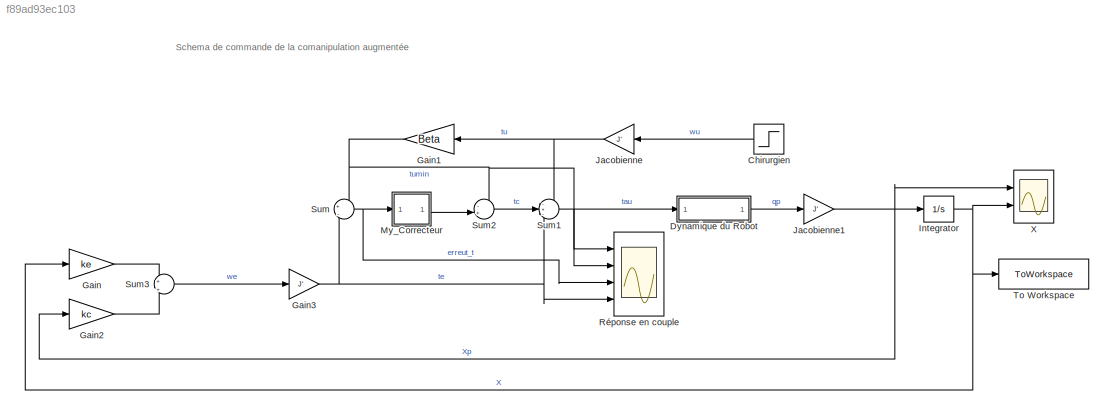
MODEL slx_f89ad93ec103
KIND model
CONFIG AbsTol = auto
CONFIG EnableMultiTasking = off
CONFIG FixedStep = auto
CONFIG MaxStep = auto
CONFIG MinStep = auto
CONFIG RelTol = 1e-3
CONFIG SampleTimeConstraint = Unconstrained
CONFIG SolverName = FixedStepAuto
CONFIG StartTime = 0.0
CONFIG StopTime = 10
BLOCK [Step] Chirurgien
  After = wu
  Before = w0
  SampleTime = 0
  VectorParams1D = off
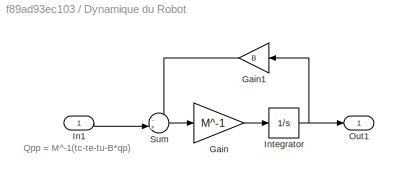
BLOCK [SubSystem] Dynamique du Robot
  Ports = [1, 1]
  RequestExecContextInheritance = off
BLOCK [Gain] Dynamique du Robot/Gain
  Gain = M^-1
  Multiplication = Matrix(K*u)
BLOCK [Gain] Dynamique du Robot/Gain1
  Gain = B
  Multiplication = Matrix(K*u)
  NameLocation = top
BLOCK [Inport] Dynamique du Robot/In1
BLOCK [Integrator] Dynamique du Robot/Integrator
  Ports = [1, 1]
BLOCK [Outport] Dynamique du Robot/Out1
BLOCK [Sum] Dynamique du Robot/Sum
  Inputs = -+|
  Ports = [2, 1]
BLOCK [Gain] Gain
  Gain = ke
  Multiplication = Matrix(K*u)
BLOCK [Gain] Gain1
  Gain = Beta
  Multiplication = Matrix(K*u)
  NameLocation = top
BLOCK [Gain] Gain2
  Gain = kc
  Multiplication = Matrix(K*u)
BLOCK [Gain] Gain3
  Gain = J'
  Multiplication = Matrix(K*u)
BLOCK [Integrator] Integrator
  InitialCondition = x
  Ports = [1, 1]
BLOCK [Gain] Jacobienne
  Gain = J'
  Multiplication = Matrix(K*u)
BLOCK [Gain] Jacobienne1
  Gain = J'
  Multiplication = Matrix(K*u)
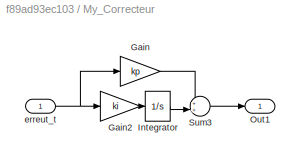
BLOCK [SubSystem] My_Correcteur
  Ports = [1, 1]
  RequestExecContextInheritance = off
BLOCK [Gain] My_Correcteur/Gain
  Gain = kp
  Multiplication = Matrix(K*u)
BLOCK [Gain] My_Correcteur/Gain2
  Gain = ki
  Multiplication = Matrix(K*u)
BLOCK [Integrator] My_Correcteur/Integrator
  InitialCondition = w0
  Ports = [1, 1]
BLOCK [Outport] My_Correcteur/Out1
BLOCK [Sum] My_Correcteur/Sum3
  Inputs = ++|
  Ports = [2, 1]
BLOCK [Inport] My_Correcteur/erreut_t
BLOCK [Scope] Réponse en couple
  Floating = off
  NumInputPorts = 4
  Ports = [4]
  ScopeSpecificationString = Simulink.scopes.TimeScopeBlockCfg('CurrentConfiguration', extmgr.ConfigurationSet(extmgr.Configuration('Core','General UI',true),extmgr.Configuration('Core','Source UI',true),extmgr.Configuration('Sources','WiredSimulink',true,'DataLoggingVariableName','ScopeData1'),extmgr.Configuration('Visuals','Time Domain',true,'SerializedDisplays',{struct('MinYLimReal','-0.44678','MaxYLimReal','0.7227','YLabe...<+1699ch>
BLOCK [Sum] Sum
  Inputs = +|-
  Ports = [2, 1]
BLOCK [Sum] Sum1
  Inputs = -+-
  Ports = [3, 1]
BLOCK [Sum] Sum2
  Inputs = -+|
  Ports = [2, 1]
BLOCK [Sum] Sum3
  Inputs = +|+
  Ports = [2, 1]
BLOCK [ToWorkspace] To Workspace
  MaxDataPoints = inf
  Ports = [1]
  SampleTime = 0.03
  VariableName = position
BLOCK [Scope] X
  Floating = off
  NumInputPorts = 2
  Ports = [2]
  ScopeSpecificationString = Simulink.scopes.TimeScopeBlockCfg('CurrentConfiguration', extmgr.ConfigurationSet(extmgr.Configuration('Core','General UI',true),extmgr.Configuration('Core','Source UI',true),extmgr.Configuration('Sources','WiredSimulink',true),extmgr.Configuration('Visuals','Time Domain',true,'SerializedDisplays',{struct('MinYLimReal','-0.0848','MaxYLimReal','0.13149','YLabelReal','','MinYLimMag','0.00000','MaxYL...<+2266ch>
ANNOTATION (root): Schema de commande de la comanipulation augmentée
ANNOTATION Dynamique du Robot: Qpp = M^-1(tc-te-tu-B*qp)
LINE Chirurgien:1 -> Jacobienne:1
LINE Dynamique du Robot/Gain1:1 -> Dynamique du Robot/Sum:1
LINE Dynamique du Robot/Gain:1 -> Dynamique du Robot/Integrator:1
LINE Dynamique du Robot/In1:1 -> Dynamique du Robot/Sum:2
NET Dynamique du Robot/Integrator:1 -> Dynamique du Robot/Gain1:1, Dynamique du Robot/Out1:1
LINE Dynamique du Robot/Sum:1 -> Dynamique du Robot/Gain:1
LINE Dynamique du Robot:1 -> Jacobienne1:1
NET Gain1:1 -> Réponse en couple:2, Sum2:1, Sum:1
LINE Gain2:1 -> Sum3:2
NET Gain3:1 -> Réponse en couple:4, Sum1:3, Sum:2
LINE Gain:1 -> Sum3:1
NET Integrator:1 -> Gain:1, To Workspace:1, X:2
NET Jacobienne1:1 -> Gain2:1, Integrator:1, X:1
NET Jacobienne:1 -> Gain1:1, Sum1:1
LINE My_Correcteur/Gain2:1 -> My_Correcteur/Integrator:1
LINE My_Correcteur/Gain:1 -> My_Correcteur/Sum3:1
LINE My_Correcteur/Integrator:1 -> My_Correcteur/Sum3:2
LINE My_Correcteur/Sum3:1 -> My_Correcteur/Out1:1
NET My_Correcteur/erreut_t:1 -> My_Correcteur/Gain2:1, My_Correcteur/Gain:1
LINE My_Correcteur:1 -> Sum2:2
NET Sum1:1 -> Dynamique du Robot:1, Réponse en couple:1
LINE Sum2:1 -> Sum1:2
LINE Sum3:1 -> Gain3:1
NET Sum:1 -> My_Correcteur:1, Réponse en couple:3
note: NET lines group one-source signal fan-out (src -> all destinations, sorted); 1:1 wires keep LINE
